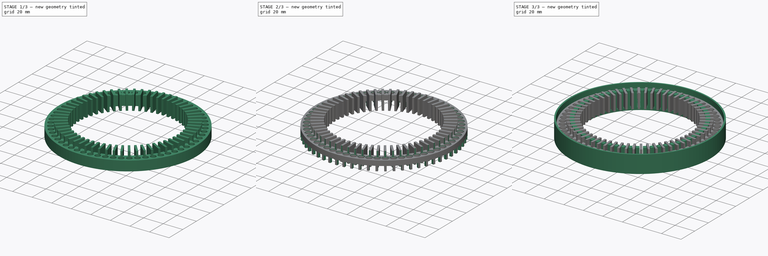
[diagram: build sequence overview — one tinted view per stage of 3, left to right]
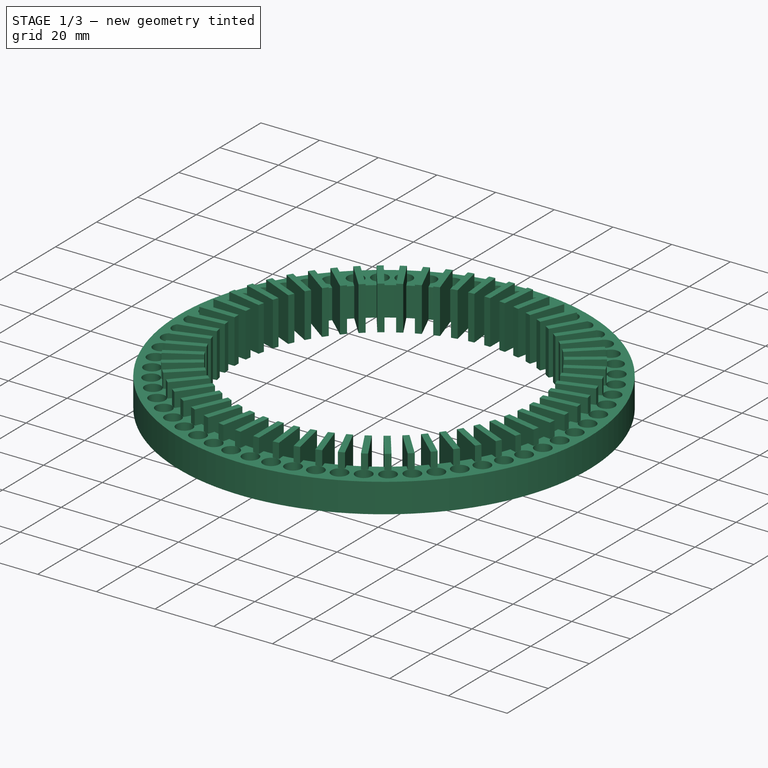
[diagram: stage 1 of 3 — iso view after this stage's code; geometry added in this stage tinted green]
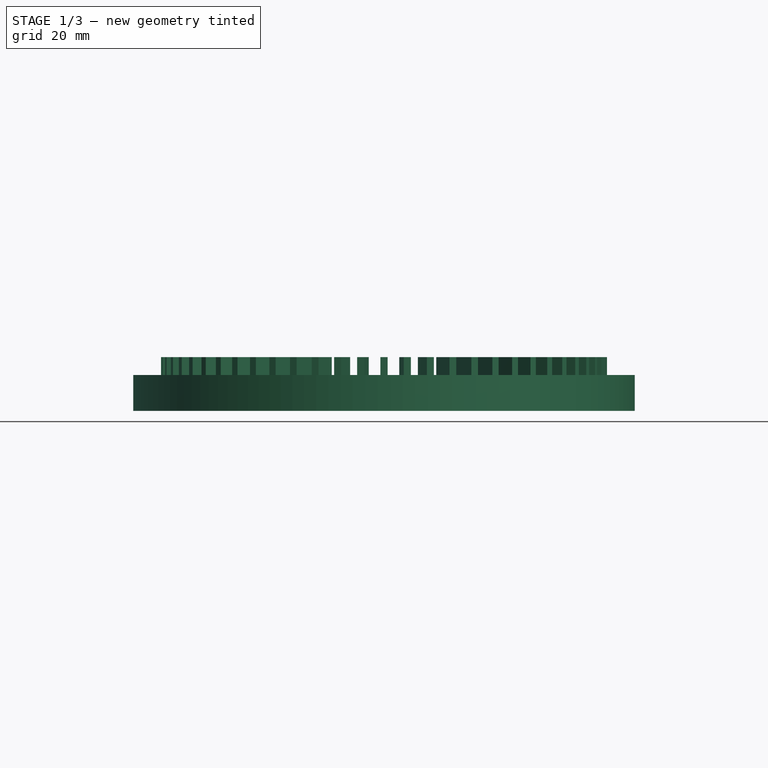
[diagram: stage 1 of 3 — front view after this stage's code; geometry added in this stage tinted green]
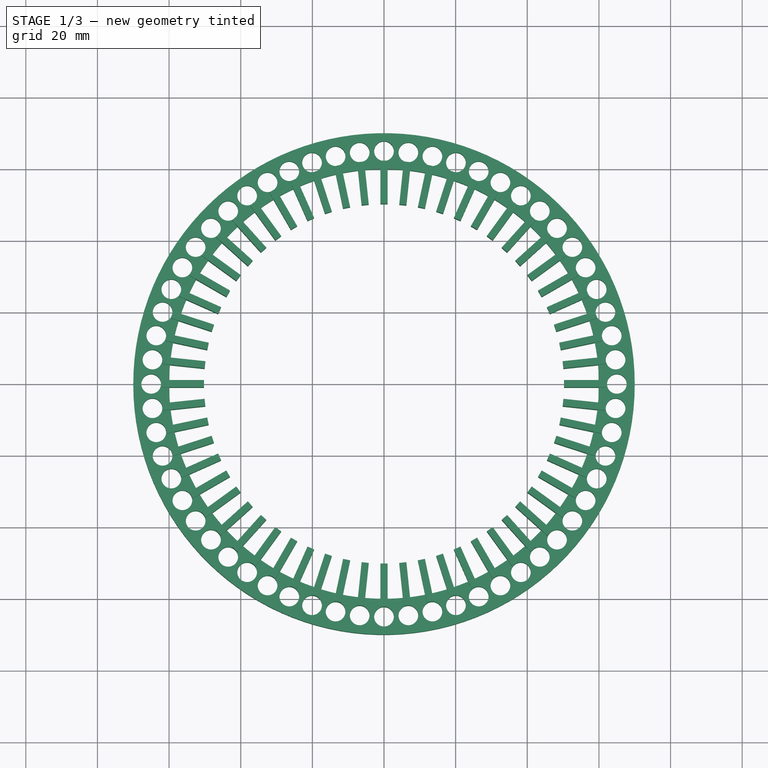
[diagram: stage 1 of 3 — top view after this stage's code; geometry added in this stage tinted green]
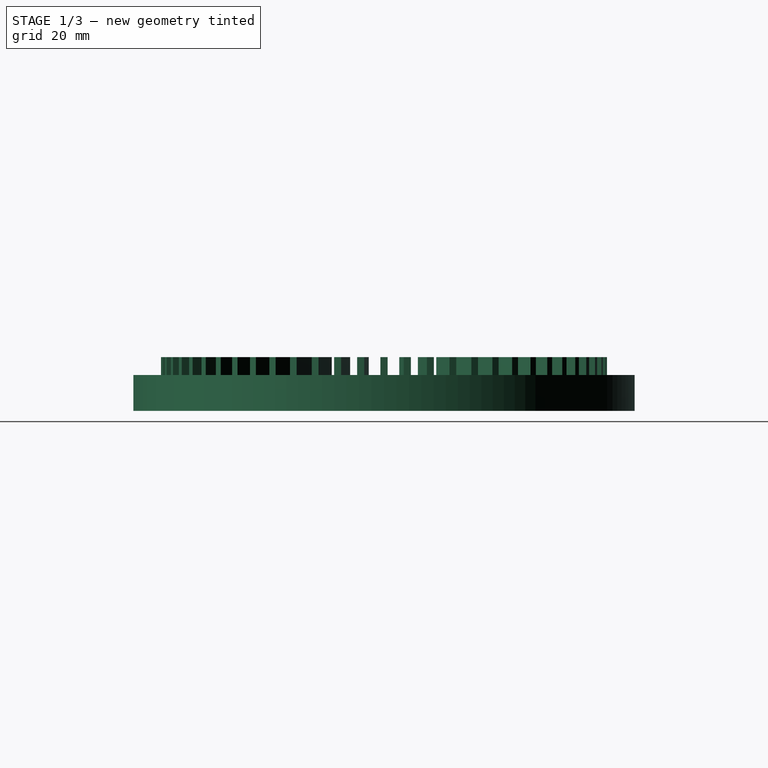
[diagram: stage 1 of 3 — right view after this stage's code; geometry added in this stage tinted green]
FCSTD DOCUMENT  (FreeCAD 1.0R39319 (Git))
Label: FaceDCF77_v2
License: All rights reserved
LicenseURL: http://en.wikipedia.org/wiki/All_rights_reserved
objects: Sketcher::SketchObject×8, Part::FeaturePython×5, PartDesign::ShapeBinder×5, PartDesign::Pocket×5, PartDesign::Pad×3, PartDesign::Body×2
note: 47 computed .brp shape members not serialized (recipe doc carries the construction recipe); baked Part::Feature solids carry a one-line shape summary decoded from their .brp

FEATURE [Sketcher::SketchObject] Sketch
  ArcFitTolerance = 1e-06
  AttachmentSupport = -> [XY_Plane]
  FullyConstrained = true
  MakeInternals = false
  MapMode = 5
  sketch-geometry (2):
    g0: Circle CenterX=0 CenterY=0 CenterZ=0 NormalX=0 NormalY=0 NormalZ=1 AngleXU=0 Radius=60
    g1: Circle CenterX=0 CenterY=0 CenterZ=0 NormalX=0 NormalY=0 NormalZ=1 AngleXU=0 Radius=70
  constraints (4):
    c: Coincident(g0,g-1)
    c: Coincident(g1,g0)
    c: Radius(g1) = 70
    c: Radius(g0) = 60
FEATURE [PartDesign::Pad] Pad  label="Volume"
  Direction = (0,0,1)
  Length = 10
  Length2 = 10
  Profile = -> Sketch
  ReferenceAxis = -> Sketch [N_Axis]
  Suppressed = false
  Type = 0
FEATURE [Sketcher::SketchObject] Sketch001
  ArcFitTolerance = 1e-06
  AttachmentSupport = -> [XY_Plane]
  FullyConstrained = true
  MakeInternals = false
  MapMode = 5
  sketch-geometry (2):
    g0: Circle [constr] CenterX=0 CenterY=0 CenterZ=0 NormalX=0 NormalY=0 NormalZ=1 AngleXU=0 Radius=65
    g1: Circle CenterX=0 CenterY=65 CenterZ=0 NormalX=0 NormalY=0 NormalZ=1 AngleXU=0 Radius=2.75
  constraints (5):
    c: Coincident(g0,g-1)
    c: Radius(g0) = 65
    c: PointOnObject(g1,g0)
    c: PointOnObject(g1,g-2)
    c: Diameter(g1) = 5.5
FEATURE [Part::FeaturePython] Array  label="LEDWells"  # Draft array (typed FeaturePython)
  AlwaysSyncPlacement = false
  Angle = 360
  ArrayType = 1
  Axis = (0,0,1)
  Base = -> Sketch001
  Center = (0,0,0)
  Count = 60
  ExpandArray = false
  Fuse = false
  IntervalAxis = (0,0,0)
  IntervalX = (50,0,0)
  IntervalY = (0,50,0)
  IntervalZ = (0,0,50)
  NumberCircles = 3
  NumberPolar = 60
  NumberX = 2
  NumberY = 2
  NumberZ = 1
  PlacementList = 60 placements: [(0,0,0),(0,0,0),(0,0,0),(0,0,0),(0,0,0),(0,0,0),(0,0,0),(0,0,0),(0,0,0),(0,0,0),(0,0,0),(0,0,0),(0,0,0),(0,0,0),(0,0,0),(0,0,0),(0,0,0),(0,0,0),(0,0,0),(0,0,0),(0,0,0),(0,0,0),(0,0,0),(0,0,0),(0,0,0),(0,0,0),(0,0,0),(0,0,0),(0,0,0),(0,0,0),(0,0,0),(0,0,0),(0,0,0),(0,0,0),(0,0,0),(0,0,0),(0,0,0),(0,0,0),(0,0,0),(0,0,0),(0,0,0),(0,0,0),(0,0,0),(0,0,0),(0,0,0),(0,0,0),(0,0,0),(0,0,0),(0,0,0),(0,0,0),+10 more]
  RadialDistance = 50
  ScaleList = (60) [(1,1,1),(1,1,1),(1,1,1),(1,1,1),(1,1,1),(1,1,1),(1,1,1),(1,1,1),(1,1,1),(1,1,1),(1,1,1),(1,1,1),(1,1,1),(1,1,1),(1,1,1),(1,1,1),(1,1,1),(1,1,1),+42 more]
  Symmetry = 1
  TangentialDistance = 25
FEATURE [PartDesign::ShapeBinder] ShapeBinder
  Support = -> [Array]
  TraceSupport = false
FEATURE [PartDesign::Pocket] Pocket  label="LEDWellsPocket"
  BaseFeature = -> Pad
  Direction = (0,0,-1)
  Length = 5
  Length2 = 5
  Profile = -> ShapeBinder
  Reversed = true
  Suppressed = false
  Type = 1
FEATURE [Sketcher::SketchObject] Sketch002
  ArcFitTolerance = 1e-06
  AttachmentSupport = -> [XY_Plane]
  ExternalGeometry = -> [Pocket]
  FullyConstrained = true
  MakeInternals = false
  MapMode = 5
  sketch-geometry (4):
    g0: LineSegment StartX=1 StartY=62.25 StartZ=0 EndX=-1 EndY=62.25 EndZ=0
    g1: LineSegment StartX=-1 StartY=62.25 StartZ=0 EndX=-1 EndY=50.25 EndZ=0
    g2: LineSegment StartX=-1 StartY=50.25 StartZ=0 EndX=1 EndY=50.25 EndZ=0
    g3: LineSegment StartX=1 StartY=50.25 StartZ=0 EndX=1 EndY=62.25 EndZ=0
  constraints (11):
    c: Coincident(g0,g1)
    c: Coincident(g1,g2)
    c: Coincident(g2,g3)
    c: Coincident(g3,g0)
    c: Horizontal(g2)
    c: Vertical(g1)
    c: Vertical(g3)
    c: DistanceX(g2,g2) = 2
    c: Tangent(g0,g-3)
    c: Symmetric(g0,g0,g-2)
    c: DistanceY(g1,g1) = 12
FEATURE [Part::FeaturePython] Array001  label="Fins"  # Draft array (typed FeaturePython)
  AlwaysSyncPlacement = false
  Angle = 360
  ArrayType = 1
  Axis = (0,0,1)
  Base = -> Sketch002
  Center = (0,0,0)
  Count = 60
  ExpandArray = false
  Fuse = false
  IntervalAxis = (0,0,0)
  IntervalX = (50,0,0)
  IntervalY = (0,50,0)
  IntervalZ = (0,0,50)
  NumberCircles = 3
  NumberPolar = 60
  NumberX = 2
  NumberY = 2
  NumberZ = 1
  PlacementList = <same value as first occurrence — deduplicated (x3 in doc)>
  RadialDistance = 50
  ScaleList = (60) [(1,1,1),(1,1,1),(1,1,1),(1,1,1),(1,1,1),(1,1,1),(1,1,1),(1,1,1),(1,1,1),(1,1,1),(1,1,1),(1,1,1),(1,1,1),(1,1,1),(1,1,1),(1,1,1),(1,1,1),(1,1,1),+42 more]
  Symmetry = 1
  TangentialDistance = 25
FEATURE [PartDesign::ShapeBinder] ShapeBinder001
  Support = -> [Array001]
  TraceSupport = false
FEATURE [PartDesign::Pad] Pad001  label="FinsPad"
  BaseFeature = -> Pocket
  Direction = (0,0,1)
  Length = 15
  Length2 = 10
  Profile = -> ShapeBinder001
  Suppressed = false
  Type = 0
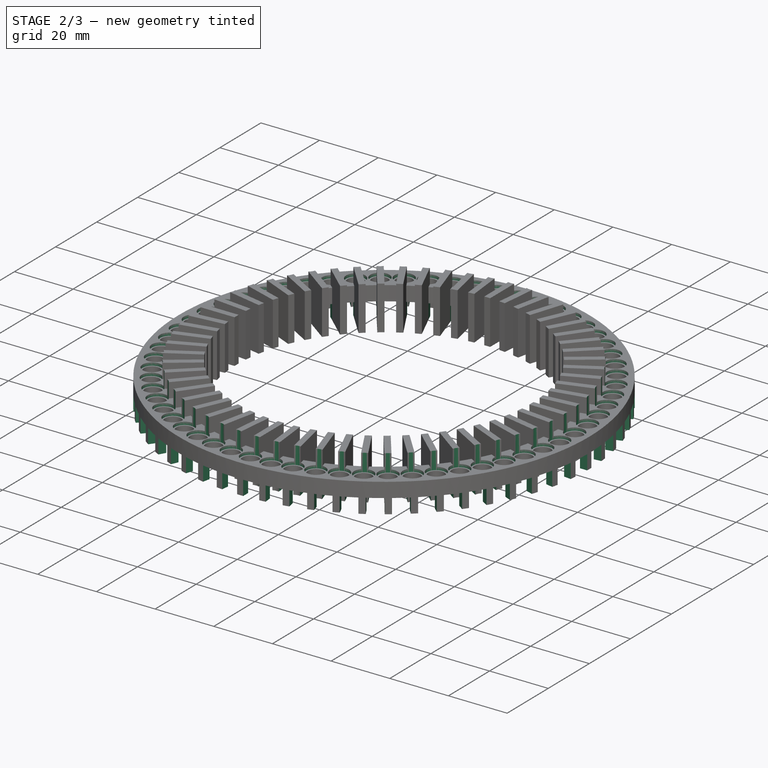
[diagram: stage 2 of 3 — iso view after this stage's code; geometry added in this stage tinted green]
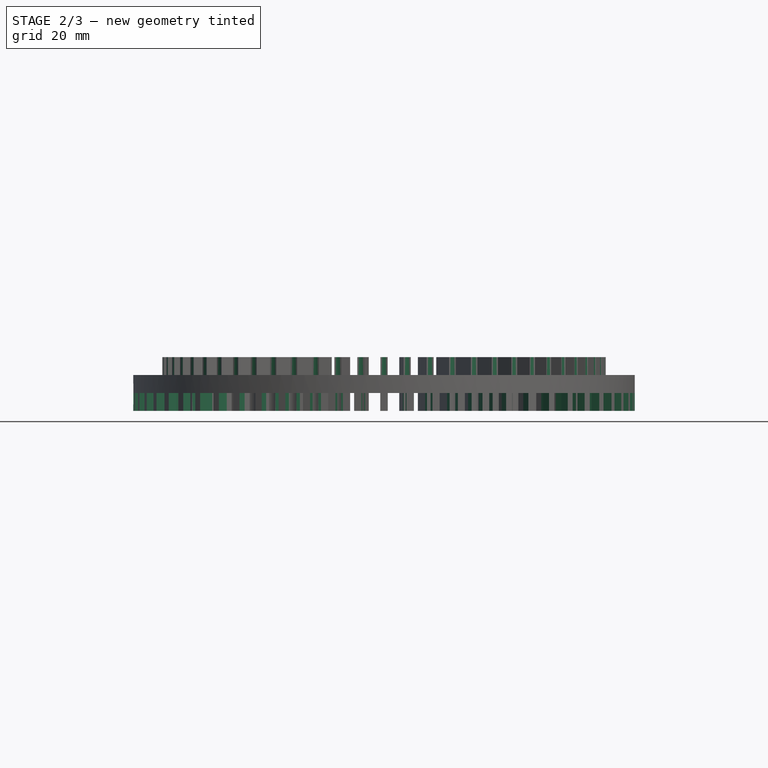
[diagram: stage 2 of 3 — front view after this stage's code; geometry added in this stage tinted green]
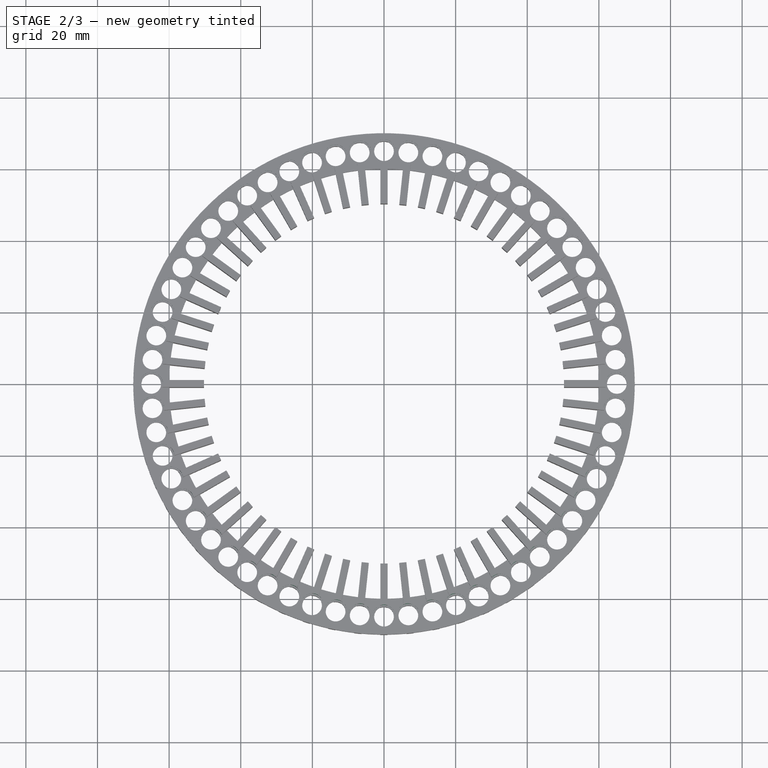
[diagram: stage 2 of 3 — top view after this stage's code; geometry added in this stage tinted green]
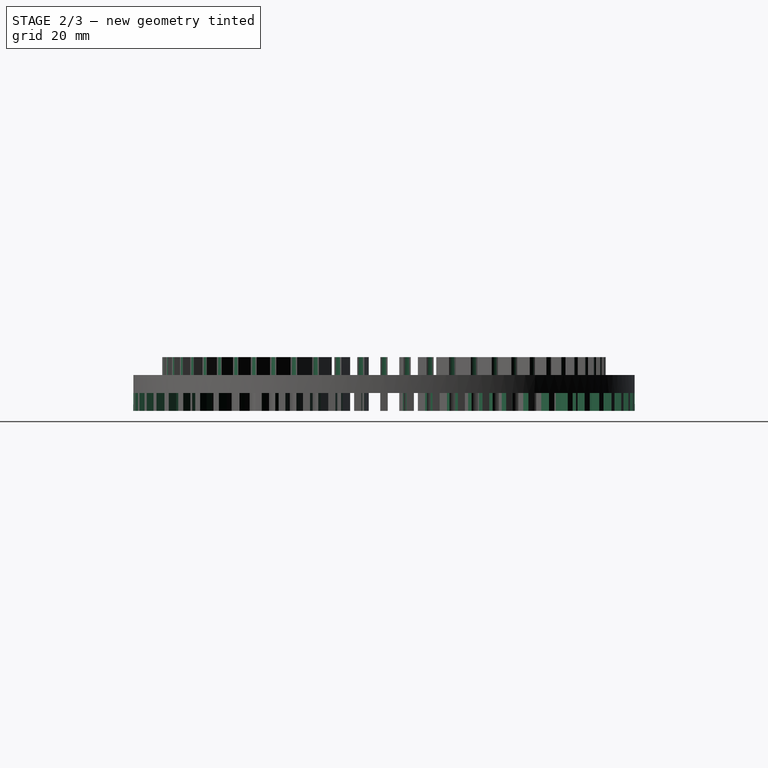
[diagram: stage 2 of 3 — right view after this stage's code; geometry added in this stage tinted green]
FEATURE [Sketcher::SketchObject] Sketch003
  ArcFitTolerance = 1e-06
  AttachmentOffset = pos=(0,0,10) rot=(0,0,1;0rad)
  AttachmentSupport = -> [XY_Plane]
  ExternalGeometry = -> [Pad001]
  FullyConstrained = true
  MakeInternals = false
  MapMode = 5
  Placement = pos=(0,0,10) rot=(0,0,1;0rad)
  sketch-geometry (1):
    g0: Circle CenterX=65 CenterY=0 CenterZ=0 NormalX=0 NormalY=0 NormalZ=1 AngleXU=0 Radius=3.25
  constraints (2):
    c: Coincident(g0,g-3)
    c: Diameter(g0) = 6.5
FEATURE [Part::FeaturePython] Array002  label="LEDRimWells"  # Draft array (typed FeaturePython)
  AlwaysSyncPlacement = false
  Angle = 360
  ArrayType = 1
  Axis = (0,0,1)
  Base = -> Sketch003
  Center = (0,0,0)
  Count = 60
  ExpandArray = false
  Fuse = false
  IntervalAxis = (0,0,0)
  IntervalX = (50,0,0)
  IntervalY = (0,50,0)
  IntervalZ = (0,0,50)
  NumberCircles = 3
  NumberPolar = 60
  NumberX = 2
  NumberY = 2
  NumberZ = 1
  PlacementList = 60 placements: [(0,0,10),(0,0,10),(0,0,10),(0,0,10),(0,0,10),(0,0,10),(0,0,10),(0,0,10),(0,0,10),(0,0,10),(0,0,10),(0,0,10),(0,0,10),(0,0,10),(0,0,10),(0,0,10),(0,0,10),(0,0,10),(0,0,10),(0,0,10),(0,0,10),(0,0,10),(0,0,10),(0,0,10),(0,0,10),(0,0,10),(0,0,10),(0,0,10),(0,0,10),(0,0,10),(0,0,10),(0,0,10),(0,0,10),(0,0,10),(0,0,10),(0,0,10),(0,0,10),(0,0,10),(0,0,10),(0,0,10),(0,0,10),(0,0,10),(0,0,10),(0,0,10),+16 more]
  RadialDistance = 50
  ScaleList = (60) [(1,1,1),(1,1,1),(1,1,1),(1,1,1),(1,1,1),(1,1,1),(1,1,1),(1,1,1),(1,1,1),(1,1,1),(1,1,1),(1,1,1),(1,1,1),(1,1,1),(1,1,1),(1,1,1),(1,1,1),(1,1,1),+42 more]
  Symmetry = 1
  TangentialDistance = 25
FEATURE [PartDesign::ShapeBinder] ShapeBinder002
  Support = -> [Array002]
  TraceSupport = false
FEATURE [PartDesign::Pocket] Pocket001  label="LedRimsPocket"
  BaseFeature = -> Pad001
  Direction = (0,0,-1)
  Length = 1
  Length2 = 5
  Profile = -> ShapeBinder002
  Suppressed = false
  Type = 4
FEATURE [PartDesign::Body] Body001  label="Cover"
  AllowCompound = false
  Group = -> [Sketch004,Pad002,Sketch005,Pocket002,Sketch006,ShapeBinder003,Pocket003]
  Origin = -> Origin001
  Tip = -> Pocket003
FEATURE [Sketcher::SketchObject] Sketch007
  ArcFitTolerance = 1e-06
  AttachmentSupport = -> [XY_Plane]
  ExternalGeometry = -> [Pocket001]
  FullyConstrained = false
  MakeInternals = false
  MapMode = 5
  sketch-geometry (6):
    g0: LineSegment [constr] StartX=50.0793 StartY=4.25803 StartZ=0 EndX=73.1852 EndY=6.62952 EndZ=0
    g1: LineSegment [constr] StartX=50.25 StartY=1 StartZ=0 EndX=73.4217 EndY=1 EndZ=0
    g2: LineSegment StartX=73.1852 StartY=6.62952 StartZ=0 EndX=59.7676 EndY=5.27631 EndZ=0
    g3: LineSegment StartX=59.7676 StartY=5.27631 StartZ=0 EndX=59.9917 EndY=1 EndZ=0
    g4: LineSegment StartX=59.9917 StartY=1 StartZ=0 EndX=73.4217 EndY=1 EndZ=0
    g5: LineSegment StartX=73.4217 StartY=1 StartZ=0 EndX=73.1852 EndY=6.62952 EndZ=0
  constraints (11):
    c: PointOnObject(g0,g-6)
    c: PointOnObject(g1,g-5)
    c: Coincident(g2,g0)
    c: Coincident(g2,g-6)
    c: Coincident(g3,g2)
    c: Coincident(g3,g-5)
    c: Coincident(g4,g3)
    c: Coincident(g4,g1)
    c: Horizontal(g4)
    c: Coincident(g5,g1)
    c: Coincident(g5,g0)
FEATURE [Part::FeaturePython] Array004  label="LightGuideIsolationGrooves"  # Draft array (typed FeaturePython)
  AlwaysSyncPlacement = false
  Angle = 360
  ArrayType = 1
  Axis = (0,0,1)
  Base = -> Sketch007
  Center = (0,0,0)
  Count = 60
  ExpandArray = false
  Fuse = false
  IntervalAxis = (0,0,0)
  IntervalX = (50,0,0)
  IntervalY = (0,50,0)
  IntervalZ = (0,0,50)
  NumberCircles = 3
  NumberPolar = 60
  NumberX = 2
  NumberY = 2
  NumberZ = 1
  PlacementList = <same value as first occurrence — deduplicated (x3 in doc)>
  RadialDistance = 50
  ScaleList = (60) [(1,1,1),(1,1,1),(1,1,1),(1,1,1),(1,1,1),(1,1,1),(1,1,1),(1,1,1),(1,1,1),(1,1,1),(1,1,1),(1,1,1),(1,1,1),(1,1,1),(1,1,1),(1,1,1),(1,1,1),(1,1,1),+42 more]
  Symmetry = 1
  TangentialDistance = 25
FEATURE [PartDesign::ShapeBinder] ShapeBinder004
  Support = -> [Array004]
  TraceSupport = false
FEATURE [PartDesign::Pocket] Pocket004  label="IsolationGroovePocket"
  BaseFeature = -> Pocket001
  Direction = (0,0,-1)
  Length = 5
  Length2 = 5
  Profile = -> ShapeBinder004
  Reversed = true
  Suppressed = false
  Type = 0
FEATURE [PartDesign::Body] Body  label="LightGuide"
  AllowCompound = false
  Group = -> [Sketch,Pad,Sketch001,ShapeBinder,Pocket,Sketch002,ShapeBinder001,Pad001,Sketch003,ShapeBinder002,Pocket001,Sketch007,ShapeBinder004,Pocket004]
  Origin = -> Origin
  Tip = -> Pocket004
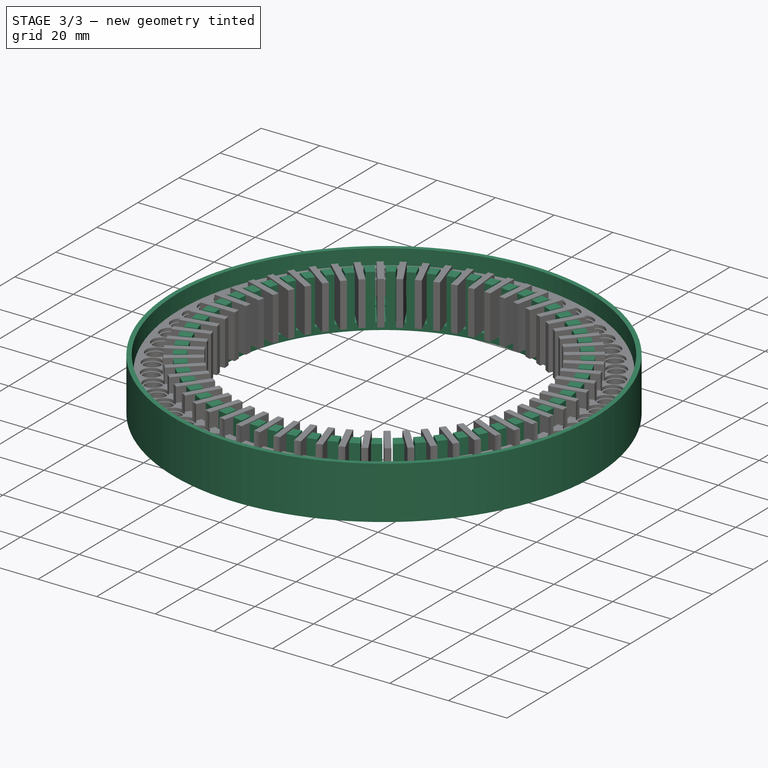
[diagram: stage 3 of 3 — iso view after this stage's code; geometry added in this stage tinted green]
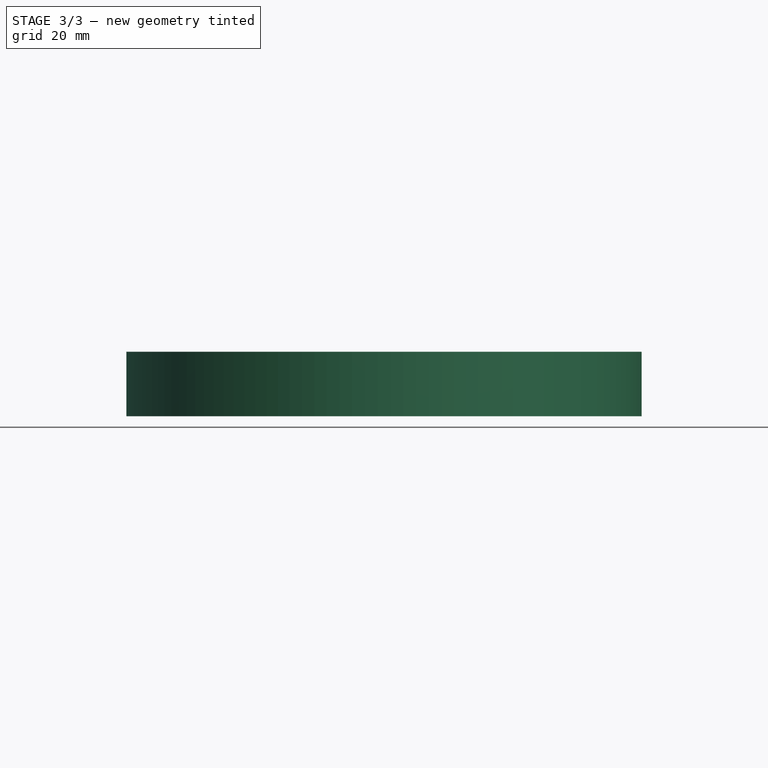
[diagram: stage 3 of 3 — front view after this stage's code; geometry added in this stage tinted green]
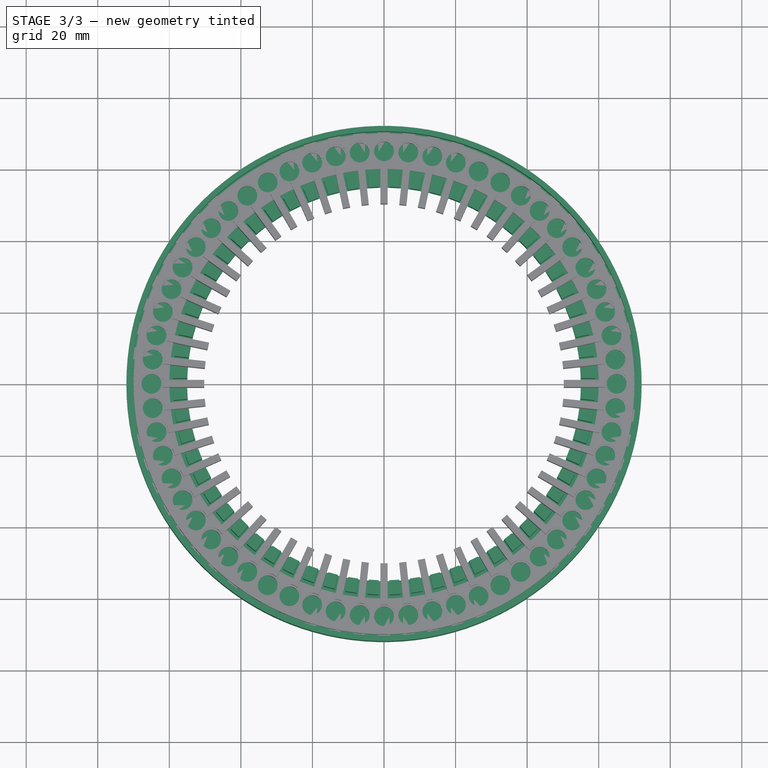
[diagram: stage 3 of 3 — top view after this stage's code; geometry added in this stage tinted green]
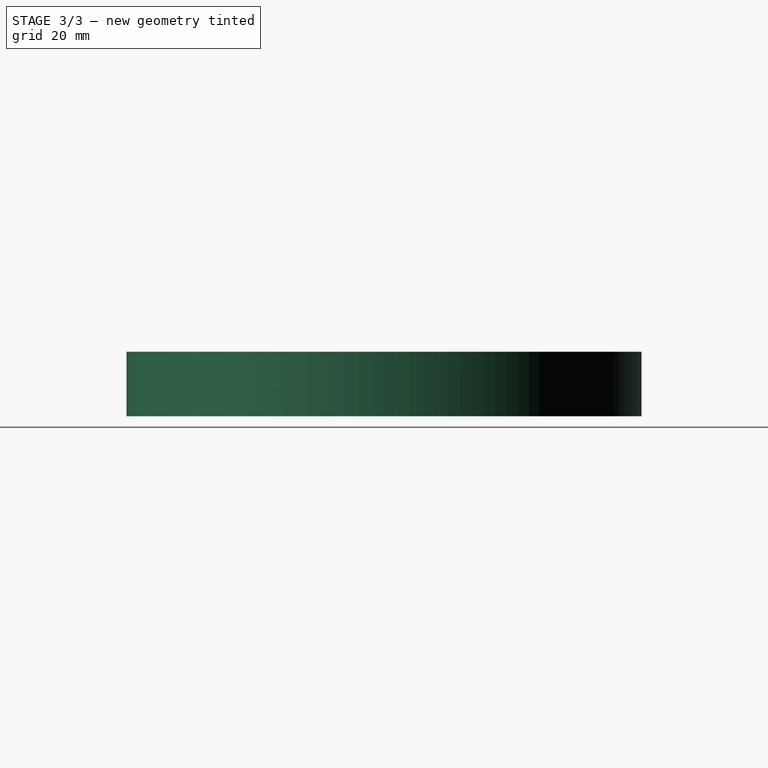
[diagram: stage 3 of 3 — right view after this stage's code; geometry added in this stage tinted green]
FEATURE [Sketcher::SketchObject] Sketch004
  ArcFitTolerance = 1e-06
  AttachmentSupport = -> [XY_Plane001]
  FullyConstrained = true
  MakeInternals = false
  MapMode = 5
  sketch-geometry (2):
    g0: Circle CenterX=0 CenterY=0 CenterZ=0 NormalX=0 NormalY=0 NormalZ=1 AngleXU=0 Radius=72
    g1: Circle CenterX=0 CenterY=0 CenterZ=0 NormalX=0 NormalY=0 NormalZ=1 AngleXU=0 Radius=55
  constraints (4):
    c: Coincident(g0,g-1)
    c: Coincident(g1,g0)
    c: Radius(g0) = 72
    c: Radius(g1) = 55
FEATURE [PartDesign::Pad] Pad002  label="CoverVolume"
  Direction = (0,0,1)
  Length = 15
  Length2 = 3
  Profile = -> Sketch004
  ReferenceAxis = -> Sketch004 [N_Axis]
  Suppressed = false
  Type = 4
FEATURE [Sketcher::SketchObject] Sketch005
  ArcFitTolerance = 1e-06
  AttachmentSupport = -> [XY_Plane001]
  FullyConstrained = true
  MakeInternals = false
  MapMode = 5
  sketch-geometry (2):
    g0: Circle CenterX=0 CenterY=0 CenterZ=0 NormalX=0 NormalY=0 NormalZ=1 AngleXU=0 Radius=59
    g1: Circle CenterX=0 CenterY=0 CenterZ=0 NormalX=0 NormalY=0 NormalZ=1 AngleXU=0 Radius=70.5
  constraints (4):
    c: Coincident(g0,g-1)
    c: Coincident(g1,g0)
    c: Radius(g1) = 70.5
    c: Radius(g0) = 59
FEATURE [PartDesign::Pocket] Pocket002  label="LightGuidePocket"
  BaseFeature = -> Pad002
  Direction = (0,0,-1)
  Length = 15
  Length2 = 5
  Profile = -> Sketch005
  ReferenceAxis = -> Sketch005 [N_Axis]
  Reversed = true
  Suppressed = false
  Type = 0
FEATURE [Sketcher::SketchObject] Sketch006
  ArcFitTolerance = 1e-06
  AttachmentOffset = pos=(0,0,15) rot=(0,0,1;0rad)
  AttachmentSupport = -> [XY_Plane001]
  FullyConstrained = true
  MakeInternals = false
  MapMode = 5
  Placement = pos=(0,0,15) rot=(0,0,1;0rad)
  sketch-geometry (5):
    g0: LineSegment StartX=53 StartY=1.5 StartZ=0 EndX=53 EndY=-1.5 EndZ=0
    g1: LineSegment StartX=53 StartY=-1.5 StartZ=0 EndX=65 EndY=-1.5 EndZ=0
    g2: LineSegment StartX=65 StartY=-1.5 StartZ=0 EndX=65 EndY=1.5 EndZ=0
    g3: LineSegment StartX=65 StartY=1.5 StartZ=0 EndX=53 EndY=1.5 EndZ=0
    g4: Circle [constr] CenterX=0 CenterY=0 CenterZ=0 NormalX=0 NormalY=0 NormalZ=1 AngleXU=0 Radius=65
  constraints (13):
    c: Coincident(g0,g1)
    c: Coincident(g1,g2)
    c: Coincident(g2,g3)
    c: Coincident(g3,g0)
    c: Vertical(g0)
    c: Horizontal(g1)
    c: Horizontal(g3)
    c: DistanceY(g0,g0) = 3
    c: Symmetric(g2,g1,g-1)
    c: Coincident(g4,g-1)
    c: Radius(g4) = 65
    c: Tangent(g2,g4)
    c: DistanceX(g1,g1) = 12
FEATURE [Part::FeaturePython] Array003  label="CoverLightGuideGrooves"  # Draft array (typed FeaturePython)
  AlwaysSyncPlacement = false
  Angle = 360
  ArrayType = 1
  Axis = (0,0,1)
  Base = -> Sketch006
  Center = (0,0,0)
  Count = 60
  ExpandArray = false
  Fuse = false
  IntervalAxis = (0,0,0)
  IntervalX = (50,0,0)
  IntervalY = (0,50,0)
  IntervalZ = (0,0,50)
  NumberCircles = 3
  NumberPolar = 60
  NumberX = 2
  NumberY = 2
  NumberZ = 1
  PlacementList = 60 placements: [(0,0,15),(0,0,15),(0,0,15),(0,0,15),(0,0,15),(0,0,15),(0,0,15),(0,0,15),(0,0,15),(0,0,15),(0,0,15),(0,0,15),(0,0,15),(0,0,15),(0,0,15),(0,0,15),(0,0,15),(0,0,15),(0,0,15),(0,0,15),(0,0,15),(0,0,15),(0,0,15),(0,0,15),(0,0,15),(0,0,15),(0,0,15),(0,0,15),(0,0,15),(0,0,15),(0,0,15),(0,0,15),(0,0,15),(0,0,15),(0,0,15),(0,0,15),(0,0,15),(0,0,15),(0,0,15),(0,0,15),(0,0,15),(0,0,15),(0,0,15),(0,0,15),+16 more]
  RadialDistance = 50
  ScaleList = (60) [(1,1,1),(1,1,1),(1,1,1),(1,1,1),(1,1,1),(1,1,1),(1,1,1),(1,1,1),(1,1,1),(1,1,1),(1,1,1),(1,1,1),(1,1,1),(1,1,1),(1,1,1),(1,1,1),(1,1,1),(1,1,1),+42 more]
  Symmetry = 1
  TangentialDistance = 25
FEATURE [PartDesign::ShapeBinder] ShapeBinder003
  Support = -> [Array003]
  TraceSupport = false
FEATURE [PartDesign::Pocket] Pocket003  label="CoverLightGroovesPocket"
  BaseFeature = -> Pocket002
  Direction = (0,0,-1)
  Length = 15.5
  Length2 = 5
  Profile = -> ShapeBinder003
  Suppressed = false
  Type = 0
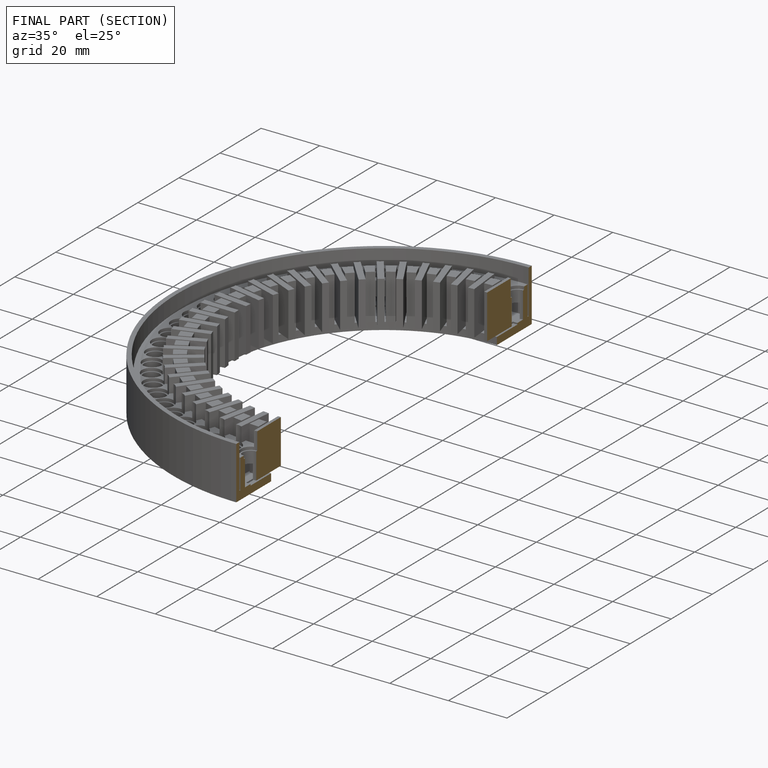
[diagram: finished part — half-section view (interior)]
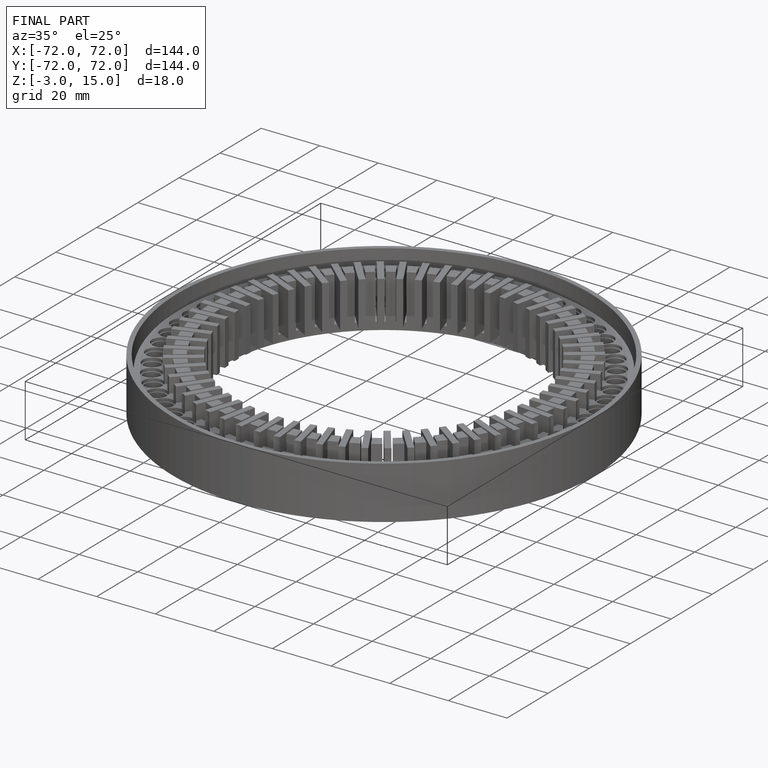
[diagram: finished part — iso view with bounding-box wireframe]
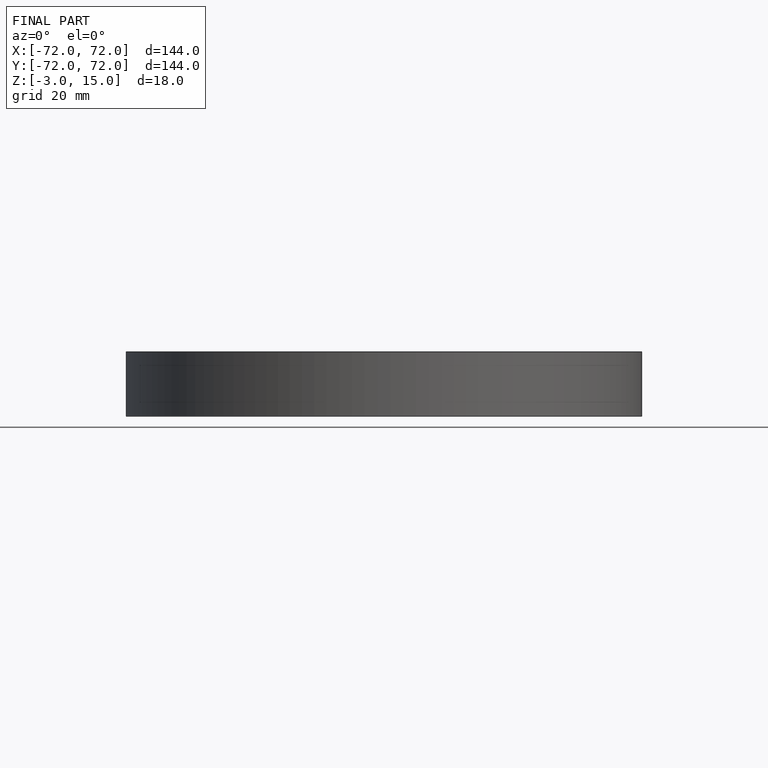
[diagram: finished part — front view with bounding-box wireframe]
